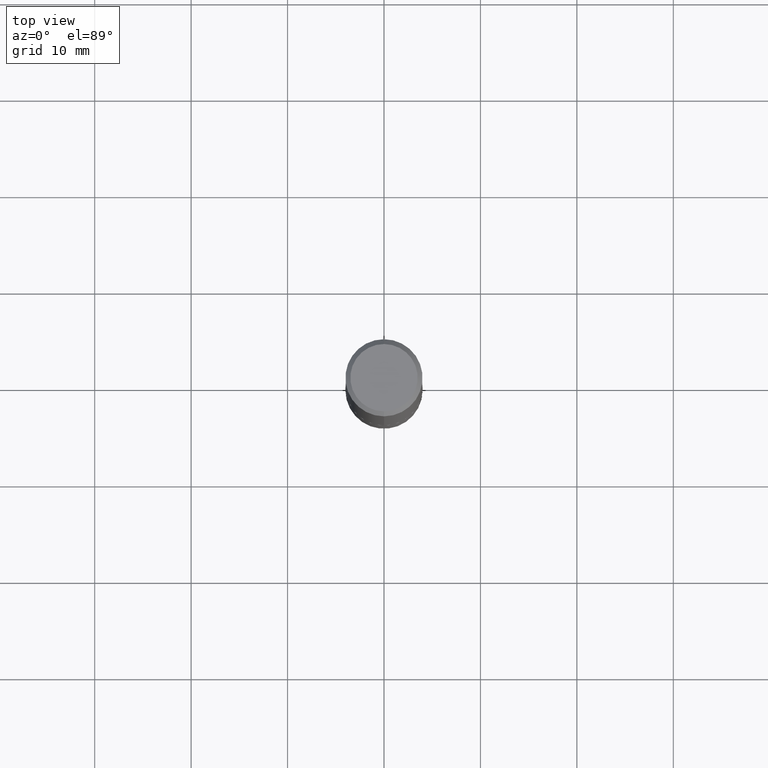
[diagram: clean part render]
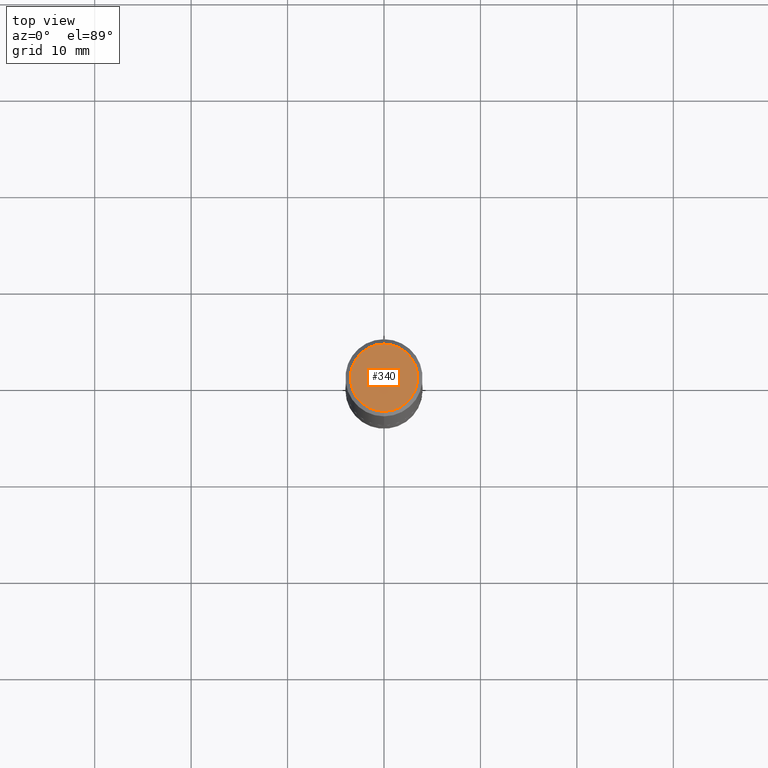
[diagram: same view with one face highlighted and labeled with its STEP entity id]
A machine part, top view. The second image highlights one B-rep face of the part: STEP entity #340.
In plain terms, the highlighted planar face has unit normal (0, -0, -1).
Its self-contained STEP definition (entity closure, byte-faithful):
#39 = CARTESIAN_POINT ( 'NONE',  ( -1.011923454671300053E-15, -0.1374999999999997891, 6.809117321244884418E-16 ) ) ;
#49 = AXIS2_PLACEMENT_3D ( 'NONE', #77, #215, #258 ) ;
#59 = CARTESIAN_POINT ( 'NONE',  ( -4.907620139431751550E-45, 7.009885081384458012E-31, 2.007265675341379917E-16 ) ) ;
#77 = CARTESIAN_POINT ( 'NONE',  ( 9.601573681818600950E-16, 0.1374999999999997891, -3.798218808232814543E-16 ) ) ;
#91 = EDGE_LOOP ( 'NONE', ( #121, #161 ) ) ;
#121 = ORIENTED_EDGE ( 'NONE', *, *, #331, .T. ) ;
#159 = DIRECTION ( 'NONE',  ( -2.444928043019069804E-29, 3.492255742475281487E-15, 1.000000000000000000 ) ) ;
#161 = ORIENTED_EDGE ( 'NONE', *, *, #285, .T. ) ;
#187 = AXIS2_PLACEMENT_3D ( 'NONE', #370, #309, #277 ) ;
#215 = DIRECTION ( 'NONE',  ( 2.444928043019069243E-29, -3.492255742475281487E-15, -1.000000000000000000 ) ) ;
#217 = CIRCLE ( 'NONE', #360, 0.1374999999999997891 ) ;
#250 = VERTEX_POINT ( 'NONE', #362 ) ;
#258 = DIRECTION ( 'NONE',  ( 6.982962677686265922E-15, 1.000000000000000000, -3.492255742475281487E-15 ) ) ;
#265 = VERTEX_POINT ( 'NONE', #39 ) ;
#277 = DIRECTION ( 'NONE',  ( -6.982962677686265922E-15, -1.000000000000000000, 3.492255742475281487E-15 ) ) ;
#285 = EDGE_CURVE ( 'NONE', #265, #250, #217, .T. ) ;
#309 = DIRECTION ( 'NONE',  ( -2.444928043019069804E-29, 3.492255742475281487E-15, 1.000000000000000000 ) ) ;
#331 = EDGE_CURVE ( 'NONE', #250, #265, #369, .T. ) ;
#340 = ADVANCED_FACE ( 'NONE', ( #399 ), #372, .F. ) ;
#353 = DIRECTION ( 'NONE',  ( -6.982962677686265922E-15, -1.000000000000000000, 3.492255742475281487E-15 ) ) ;
#360 = AXIS2_PLACEMENT_3D ( 'NONE', #59, #159, #353 ) ;
#362 = CARTESIAN_POINT ( 'NONE',  ( 1.029986994958723788E-15, 0.1374999999999997891, -2.794585970562124091E-16 ) ) ;
#369 = CIRCLE ( 'NONE', #187, 0.1374999999999997891 ) ;
#370 = CARTESIAN_POINT ( 'NONE',  ( -4.907620139431751550E-45, 7.009885081384458012E-31, 2.007265675341379917E-16 ) ) ;
#372 = PLANE ( 'NONE',  #49 ) ;
#399 = FACE_OUTER_BOUND ( 'NONE', #91, .T. ) ;